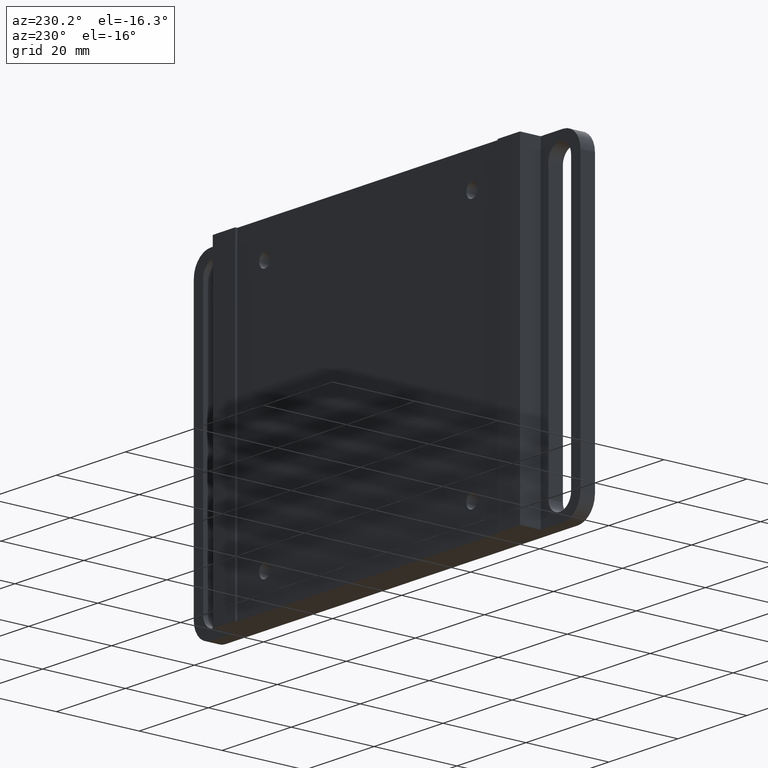
[diagram: clean part render]
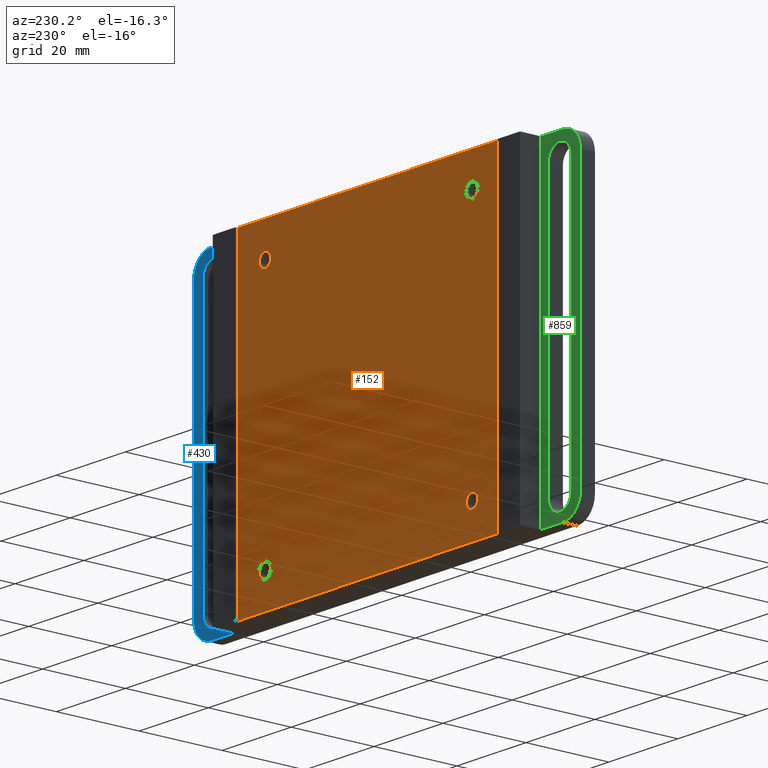
[diagram: same view with three faces highlighted in distinct colors, each labeled with its STEP entity id]
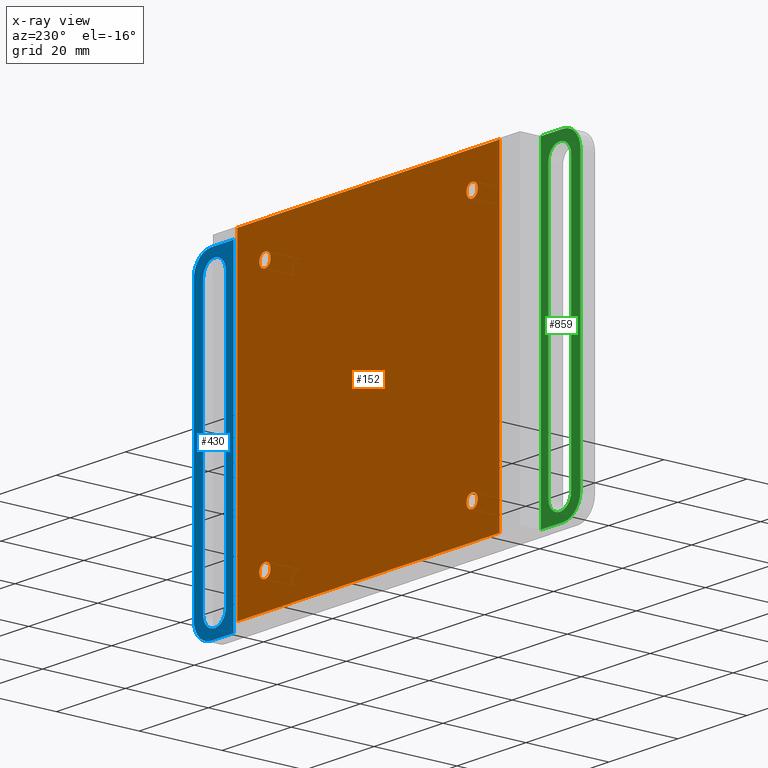
[diagram: x-ray of the same camera — body ghosted, the three highlighted faces saturated]
A machine part, auxiliary view with three faces highlighted in distinct colors.
The next image is the same camera in x-ray (body ghosted, the three faces saturated) — at least one of them is partly hidden behind the body in this view.
Their STEP definitions:

[orange] entity #152 — the highlighted planar face has unit normal (0, -1, 0).
#5 = VECTOR ( 'NONE', #423, 1000.000000000000000 ) ;
#10 = CARTESIAN_POINT ( 'NONE',  ( 29.99999999999981171, 8.000000000000001776, 30.00000000000000000 ) ) ;
#12 = CARTESIAN_POINT ( 'NONE',  ( -30.00000000000002842, 8.000000000000001776, 30.00000000000000000 ) ) ;
#13 = EDGE_CURVE ( 'NONE', #1026, #1016, #717, .T. ) ;
#16 = FACE_BOUND ( 'NONE', #61, .T. ) ;
#19 = CARTESIAN_POINT ( 'NONE',  ( 38.00000000000000711, 8.000000000000001776, 38.00000000000000000 ) ) ;
#61 = EDGE_LOOP ( 'NONE', ( #650 ) ) ;
#68 = EDGE_CURVE ( 'NONE', #1016, #781, #385, .T. ) ;
#94 = DIRECTION ( 'NONE',  ( 0.000000000000000000, -1.000000000000000000, 0.000000000000000000 ) ) ;
#99 = LINE ( 'NONE', #19, #5 ) ;
#102 = CARTESIAN_POINT ( 'NONE',  ( -30.00000000000002842, 8.000000000000001776, -28.35000000000000142 ) ) ;
#108 = CARTESIAN_POINT ( 'NONE',  ( 29.99999999999981171, 8.000000000000001776, 31.64999999999999858 ) ) ;
#150 = ORIENTED_EDGE ( 'NONE', *, *, #691, .F. ) ;
#152 = ADVANCED_FACE ( 'NONE', ( #424, #503, #16, #405, #579 ), #821, .F. ) ;
#178 = VERTEX_POINT ( 'NONE', #588 ) ;
#179 = VECTOR ( 'NONE', #955, 1000.000000000000000 ) ;
#232 = CIRCLE ( 'NONE', #678, 1.649999999999998579 ) ;
#233 = CIRCLE ( 'NONE', #304, 1.649999999999998579 ) ;
#277 = CARTESIAN_POINT ( 'NONE',  ( 29.99999999999981171, 8.000000000000001776, -28.35000000000000142 ) ) ;
#280 = VERTEX_POINT ( 'NONE', #108 ) ;
#281 = EDGE_LOOP ( 'NONE', ( #591, #1006, #150, #639 ) ) ;
#304 = AXIS2_PLACEMENT_3D ( 'NONE', #805, #867, #459 ) ;
#310 = DIRECTION ( 'NONE',  ( -1.000000000000000000, 0.000000000000000000, 0.000000000000000000 ) ) ;
#313 = CARTESIAN_POINT ( 'NONE',  ( 29.99999999999981171, 8.000000000000001776, -30.00000000000000000 ) ) ;
#337 = DIRECTION ( 'NONE',  ( 0.000000000000000000, -0.000000000000000000, -1.000000000000000000 ) ) ;
#361 = ORIENTED_EDGE ( 'NONE', *, *, #510, .F. ) ;
#373 = ORIENTED_EDGE ( 'NONE', *, *, #1053, .F. ) ;
#385 = LINE ( 'NONE', #702, #464 ) ;
#389 = EDGE_CURVE ( 'NONE', #672, #672, #232, .T. ) ;
#405 = FACE_BOUND ( 'NONE', #726, .T. ) ;
#423 = DIRECTION ( 'NONE',  ( -1.000000000000000000, 0.000000000000000000, 0.000000000000000000 ) ) ;
#424 = FACE_BOUND ( 'NONE', #848, .T. ) ;
#427 = VERTEX_POINT ( 'NONE', #801 ) ;
#459 = DIRECTION ( 'NONE',  ( 0.000000000000000000, 0.000000000000000000, 1.000000000000000000 ) ) ;
#464 = VECTOR ( 'NONE', #310, 1000.000000000000000 ) ;
#477 = CIRCLE ( 'NONE', #664, 1.649999999999998579 ) ;
#503 = FACE_BOUND ( 'NONE', #753, .T. ) ;
#510 = EDGE_CURVE ( 'NONE', #743, #743, #233, .T. ) ;
#579 = FACE_OUTER_BOUND ( 'NONE', #281, .T. ) ;
#580 = CARTESIAN_POINT ( 'NONE',  ( 38.00000000000000711, 8.000000000000001776, 38.00000000000000000 ) ) ;
#582 = LINE ( 'NONE', #585, #976 ) ;
#585 = CARTESIAN_POINT ( 'NONE',  ( -38.00000000000000711, 8.000000000000001776, 38.00000000000000000 ) ) ;
#588 = CARTESIAN_POINT ( 'NONE',  ( -30.00000000000002842, 8.000000000000001776, 31.64999999999999858 ) ) ;
#591 = ORIENTED_EDGE ( 'NONE', *, *, #68, .T. ) ;
#595 = CARTESIAN_POINT ( 'NONE',  ( 38.00000000000000711, 8.000000000000001776, -38.00000000000000000 ) ) ;
#597 = EDGE_CURVE ( 'NONE', #280, #280, #477, .T. ) ;
#629 = CARTESIAN_POINT ( 'NONE',  ( -38.00000000000000711, 8.000000000000001776, -38.00000000000000000 ) ) ;
#639 = ORIENTED_EDGE ( 'NONE', *, *, #13, .T. ) ;
#650 = ORIENTED_EDGE ( 'NONE', *, *, #597, .F. ) ;
#664 = AXIS2_PLACEMENT_3D ( 'NONE', #10, #813, #721 ) ;
#672 = VERTEX_POINT ( 'NONE', #277 ) ;
#678 = AXIS2_PLACEMENT_3D ( 'NONE', #313, #701, #880 ) ;
#679 = CIRCLE ( 'NONE', #827, 1.649999999999998579 ) ;
#680 = AXIS2_PLACEMENT_3D ( 'NONE', #900, #94, #337 ) ;
#691 = EDGE_CURVE ( 'NONE', #1026, #427, #99, .T. ) ;
#701 = DIRECTION ( 'NONE',  ( -0.000000000000000000, 1.000000000000000000, -0.000000000000000000 ) ) ;
#702 = CARTESIAN_POINT ( 'NONE',  ( 38.00000000000000711, 8.000000000000001776, -38.00000000000000000 ) ) ;
#704 = CARTESIAN_POINT ( 'NONE',  ( 38.00000000000000711, 8.000000000000001776, 38.00000000000000000 ) ) ;
#717 = LINE ( 'NONE', #704, #179 ) ;
#721 = DIRECTION ( 'NONE',  ( 0.000000000000000000, 0.000000000000000000, 1.000000000000000000 ) ) ;
#726 = EDGE_LOOP ( 'NONE', ( #373 ) ) ;
#743 = VERTEX_POINT ( 'NONE', #102 ) ;
#753 = EDGE_LOOP ( 'NONE', ( #754 ) ) ;
#754 = ORIENTED_EDGE ( 'NONE', *, *, #389, .F. ) ;
#758 = DIRECTION ( 'NONE',  ( -0.000000000000000000, 1.000000000000000000, -0.000000000000000000 ) ) ;
#762 = DIRECTION ( 'NONE',  ( 0.000000000000000000, 0.000000000000000000, 1.000000000000000000 ) ) ;
#781 = VERTEX_POINT ( 'NONE', #629 ) ;
#801 = CARTESIAN_POINT ( 'NONE',  ( -38.00000000000000711, 8.000000000000001776, 38.00000000000000000 ) ) ;
#805 = CARTESIAN_POINT ( 'NONE',  ( -30.00000000000002842, 8.000000000000001776, -30.00000000000000000 ) ) ;
#813 = DIRECTION ( 'NONE',  ( -0.000000000000000000, 1.000000000000000000, -0.000000000000000000 ) ) ;
#819 = EDGE_CURVE ( 'NONE', #427, #781, #582, .T. ) ;
#821 = PLANE ( 'NONE',  #680 ) ;
#827 = AXIS2_PLACEMENT_3D ( 'NONE', #12, #758, #762 ) ;
#848 = EDGE_LOOP ( 'NONE', ( #361 ) ) ;
#867 = DIRECTION ( 'NONE',  ( -0.000000000000000000, 1.000000000000000000, -0.000000000000000000 ) ) ;
#880 = DIRECTION ( 'NONE',  ( 0.000000000000000000, 0.000000000000000000, 1.000000000000000000 ) ) ;
#900 = CARTESIAN_POINT ( 'NONE',  ( 38.00000000000000711, 8.000000000000001776, 38.00000000000000000 ) ) ;
#955 = DIRECTION ( 'NONE',  ( -0.000000000000000000, -0.000000000000000000, -1.000000000000000000 ) ) ;
#976 = VECTOR ( 'NONE', #1056, 1000.000000000000000 ) ;
#1006 = ORIENTED_EDGE ( 'NONE', *, *, #819, .F. ) ;
#1016 = VERTEX_POINT ( 'NONE', #595 ) ;
#1026 = VERTEX_POINT ( 'NONE', #580 ) ;
#1053 = EDGE_CURVE ( 'NONE', #178, #178, #679, .T. ) ;
#1056 = DIRECTION ( 'NONE',  ( -0.000000000000000000, -0.000000000000000000, -1.000000000000000000 ) ) ;

[blue] entity #430 — the highlighted planar face has unit normal (-0, -1, 0).
#7 = LINE ( 'NONE', #837, #236 ) ;
#33 = VERTEX_POINT ( 'NONE', #314 ) ;
#53 = CIRCLE ( 'NONE', #625, 4.999999999999997335 ) ;
#57 = DIRECTION ( 'NONE',  ( 1.131341397376178325E-16, 1.000000000000000000, -0.000000000000000000 ) ) ;
#71 = VECTOR ( 'NONE', #901, 1000.000000000000000 ) ;
#79 = DIRECTION ( 'NONE',  ( 1.000000000000000000, -8.673617379884040402E-17, 0.000000000000000000 ) ) ;
#98 = EDGE_CURVE ( 'NONE', #221, #223, #977, .T. ) ;
#106 = EDGE_CURVE ( 'NONE', #783, #501, #454, .T. ) ;
#110 = VECTOR ( 'NONE', #563, 1000.000000000000000 ) ;
#116 = CARTESIAN_POINT ( 'NONE',  ( 46.70000000000003837, 3.500000000000012434, 32.50000000000000000 ) ) ;
#133 = EDGE_CURVE ( 'NONE', #33, #529, #576, .T. ) ;
#140 = DIRECTION ( 'NONE',  ( -1.131341397376178325E-16, -1.000000000000000000, 0.000000000000000000 ) ) ;
#149 = CARTESIAN_POINT ( 'NONE',  ( 46.70000000000003837, 3.500000000000012434, -32.50000000000000000 ) ) ;
#154 = DIRECTION ( 'NONE',  ( -0.000000000000000000, -0.000000000000000000, -1.000000000000000000 ) ) ;
#164 = DIRECTION ( 'NONE',  ( 1.131341397376178325E-16, 1.000000000000000000, -0.000000000000000000 ) ) ;
#187 = CARTESIAN_POINT ( 'NONE',  ( 53.30000000000003979, 3.500000000000013323, -32.50000000000000000 ) ) ;
#208 = EDGE_CURVE ( 'NONE', #774, #33, #7, .T. ) ;
#209 = CARTESIAN_POINT ( 'NONE',  ( 44.50000000000000000, 3.500000000000000000, -38.00000000000000000 ) ) ;
#218 = AXIS2_PLACEMENT_3D ( 'NONE', #749, #972, #825 ) ;
#221 = VERTEX_POINT ( 'NONE', #419 ) ;
#223 = VERTEX_POINT ( 'NONE', #761 ) ;
#224 = FACE_BOUND ( 'NONE', #844, .T. ) ;
#226 = ORIENTED_EDGE ( 'NONE', *, *, #698, .F. ) ;
#236 = VECTOR ( 'NONE', #983, 1000.000000000000000 ) ;
#237 = DIRECTION ( 'NONE',  ( 1.000000000000000000, -8.673617379884040402E-17, 0.000000000000000000 ) ) ;
#245 = LINE ( 'NONE', #471, #110 ) ;
#251 = DIRECTION ( 'NONE',  ( -1.000000000000000000, 1.131341397376178325E-16, 0.000000000000000000 ) ) ;
#261 = CARTESIAN_POINT ( 'NONE',  ( 44.50000000000000000, 3.500000000000000000, 38.00000000000000000 ) ) ;
#265 = DIRECTION ( 'NONE',  ( -1.000000000000000000, 1.131341397376178325E-16, 0.000000000000000000 ) ) ;
#274 = AXIS2_PLACEMENT_3D ( 'NONE', #794, #140, #461 ) ;
#305 = ORIENTED_EDGE ( 'NONE', *, *, #966, .T. ) ;
#314 = CARTESIAN_POINT ( 'NONE',  ( 56.00000000000000000, 3.499999999999998668, -33.00000000000000711 ) ) ;
#327 = VERTEX_POINT ( 'NONE', #209 ) ;
#351 = CARTESIAN_POINT ( 'NONE',  ( 51.00000000000000711, 3.499999999999999112, -33.00000000000000711 ) ) ;
#359 = VERTEX_POINT ( 'NONE', #116 ) ;
#387 = ORIENTED_EDGE ( 'NONE', *, *, #866, .F. ) ;
#399 = CARTESIAN_POINT ( 'NONE',  ( 50.00000000000004263, 3.500000000000012879, 32.50000000000000000 ) ) ;
#402 = CARTESIAN_POINT ( 'NONE',  ( 56.00000000000000000, 3.499999999999998668, 33.00000000000000000 ) ) ;
#419 = CARTESIAN_POINT ( 'NONE',  ( 51.00000000000000711, 3.499999999999999112, 38.00000000000000000 ) ) ;
#430 = ADVANCED_FACE ( 'NONE', ( #224, #870 ), #1047, .F. ) ;
#435 = EDGE_LOOP ( 'NONE', ( #534, #436, #305, #874, #770, #1022 ) ) ;
#436 = ORIENTED_EDGE ( 'NONE', *, *, #133, .T. ) ;
#447 = AXIS2_PLACEMENT_3D ( 'NONE', #399, #1052, #492 ) ;
#454 = CIRCLE ( 'NONE', #218, 3.299999999999997158 ) ;
#461 = DIRECTION ( 'NONE',  ( 1.000000000000000000, -1.131341397376178325E-16, 0.000000000000000000 ) ) ;
#468 = CARTESIAN_POINT ( 'NONE',  ( 56.00000000000000000, 3.499999999999998668, -38.00000000000000000 ) ) ;
#471 = CARTESIAN_POINT ( 'NONE',  ( 46.70000000000003837, 3.500000000000012434, -32.50000000000000000 ) ) ;
#492 = DIRECTION ( 'NONE',  ( -1.000000000000000000, -1.314184451497582245E-16, 0.000000000000000000 ) ) ;
#493 = EDGE_CURVE ( 'NONE', #221, #774, #53, .T. ) ;
#501 = VERTEX_POINT ( 'NONE', #149 ) ;
#505 = CARTESIAN_POINT ( 'NONE',  ( 53.30000000000003268, 3.499999999999999112, 32.50000000000000000 ) ) ;
#529 = VERTEX_POINT ( 'NONE', #651 ) ;
#533 = ORIENTED_EDGE ( 'NONE', *, *, #106, .F. ) ;
#534 = ORIENTED_EDGE ( 'NONE', *, *, #208, .T. ) ;
#557 = CARTESIAN_POINT ( 'NONE',  ( 56.00000000000000000, 3.499999999999998668, 38.00000000000000000 ) ) ;
#563 = DIRECTION ( 'NONE',  ( 0.000000000000000000, 0.000000000000000000, 1.000000000000000000 ) ) ;
#576 = CIRCLE ( 'NONE', #861, 4.999999999999997335 ) ;
#593 = VECTOR ( 'NONE', #251, 1000.000000000000000 ) ;
#616 = CARTESIAN_POINT ( 'NONE',  ( 51.00000000000000711, 3.499999999999999112, 33.00000000000000000 ) ) ;
#625 = AXIS2_PLACEMENT_3D ( 'NONE', #616, #57, #237 ) ;
#633 = LINE ( 'NONE', #261, #71 ) ;
#646 = VECTOR ( 'NONE', #154, 1000.000000000000000 ) ;
#648 = EDGE_CURVE ( 'NONE', #359, #692, #909, .T. ) ;
#651 = CARTESIAN_POINT ( 'NONE',  ( 51.00000000000000711, 3.499999999999999112, -38.00000000000000000 ) ) ;
#692 = VERTEX_POINT ( 'NONE', #505 ) ;
#698 = EDGE_CURVE ( 'NONE', #692, #783, #744, .T. ) ;
#713 = VECTOR ( 'NONE', #265, 1000.000000000000000 ) ;
#729 = LINE ( 'NONE', #468, #593 ) ;
#738 = ORIENTED_EDGE ( 'NONE', *, *, #648, .F. ) ;
#744 = LINE ( 'NONE', #839, #646 ) ;
#749 = CARTESIAN_POINT ( 'NONE',  ( 50.00000000000004263, 3.500000000000012879, -32.50000000000000000 ) ) ;
#761 = CARTESIAN_POINT ( 'NONE',  ( 44.50000000000000000, 3.500000000000000000, 38.00000000000000000 ) ) ;
#770 = ORIENTED_EDGE ( 'NONE', *, *, #98, .F. ) ;
#774 = VERTEX_POINT ( 'NONE', #402 ) ;
#783 = VERTEX_POINT ( 'NONE', #187 ) ;
#794 = CARTESIAN_POINT ( 'NONE',  ( 56.00000000000000000, 3.499999999999998668, 38.00000000000000000 ) ) ;
#825 = DIRECTION ( 'NONE',  ( 1.000000000000000000, 1.314184451497582245E-16, 0.000000000000000000 ) ) ;
#837 = CARTESIAN_POINT ( 'NONE',  ( 56.00000000000000000, 3.499999999999998668, 38.00000000000000000 ) ) ;
#839 = CARTESIAN_POINT ( 'NONE',  ( 53.30000000000003268, 3.500000000000013323, -32.50000000000000000 ) ) ;
#844 = EDGE_LOOP ( 'NONE', ( #226, #738, #387, #533 ) ) ;
#861 = AXIS2_PLACEMENT_3D ( 'NONE', #351, #164, #79 ) ;
#866 = EDGE_CURVE ( 'NONE', #501, #359, #245, .T. ) ;
#870 = FACE_OUTER_BOUND ( 'NONE', #435, .T. ) ;
#874 = ORIENTED_EDGE ( 'NONE', *, *, #906, .F. ) ;
#901 = DIRECTION ( 'NONE',  ( -0.000000000000000000, -0.000000000000000000, -1.000000000000000000 ) ) ;
#906 = EDGE_CURVE ( 'NONE', #223, #327, #633, .T. ) ;
#909 = CIRCLE ( 'NONE', #447, 3.299999999999997158 ) ;
#966 = EDGE_CURVE ( 'NONE', #529, #327, #729, .T. ) ;
#972 = DIRECTION ( 'NONE',  ( -1.577021341797097067E-16, 1.000000000000000000, -0.000000000000000000 ) ) ;
#977 = LINE ( 'NONE', #557, #713 ) ;
#983 = DIRECTION ( 'NONE',  ( -0.000000000000000000, -0.000000000000000000, -1.000000000000000000 ) ) ;
#1022 = ORIENTED_EDGE ( 'NONE', *, *, #493, .T. ) ;
#1047 = PLANE ( 'NONE',  #274 ) ;
#1052 = DIRECTION ( 'NONE',  ( -1.577021341797097067E-16, 1.000000000000000000, 0.000000000000000000 ) ) ;

[green] entity #859 — the highlighted planar face has unit normal (0, -1, 0).
#3 = ORIENTED_EDGE ( 'NONE', *, *, #326, .F. ) ;
#8 = CARTESIAN_POINT ( 'NONE',  ( -51.00000000000000711, 3.499999999999999112, -33.00000000000000711 ) ) ;
#20 = EDGE_CURVE ( 'NONE', #997, #969, #66, .T. ) ;
#30 = ORIENTED_EDGE ( 'NONE', *, *, #466, .F. ) ;
#35 = EDGE_LOOP ( 'NONE', ( #211, #546, #1008, #745, #137, #828 ) ) ;
#52 = CARTESIAN_POINT ( 'NONE',  ( -44.50000000000000000, 3.500000000000000000, 38.00000000000000000 ) ) ;
#56 = AXIS2_PLACEMENT_3D ( 'NONE', #360, #296, #603 ) ;
#58 = EDGE_CURVE ( 'NONE', #458, #452, #786, .T. ) ;
#60 = DIRECTION ( 'NONE',  ( -0.000000000000000000, -0.000000000000000000, -1.000000000000000000 ) ) ;
#62 = CARTESIAN_POINT ( 'NONE',  ( -53.30000000000003268, 3.499999999999999112, -32.50000000000000711 ) ) ;
#66 = LINE ( 'NONE', #460, #382 ) ;
#120 = ORIENTED_EDGE ( 'NONE', *, *, #889, .F. ) ;
#124 = EDGE_LOOP ( 'NONE', ( #522, #120, #30, #3 ) ) ;
#137 = ORIENTED_EDGE ( 'NONE', *, *, #877, .T. ) ;
#142 = DIRECTION ( 'NONE',  ( -0.000000000000000000, -0.000000000000000000, -1.000000000000000000 ) ) ;
#151 = FACE_OUTER_BOUND ( 'NONE', #35, .T. ) ;
#155 = DIRECTION ( 'NONE',  ( -0.000000000000000000, -0.000000000000000000, -1.000000000000000000 ) ) ;
#176 = VECTOR ( 'NONE', #155, 1000.000000000000000 ) ;
#211 = ORIENTED_EDGE ( 'NONE', *, *, #480, .F. ) ;
#215 = VERTEX_POINT ( 'NONE', #499 ) ;
#228 = DIRECTION ( 'NONE',  ( 0.000000000000000000, 0.000000000000000000, 1.000000000000000000 ) ) ;
#230 = CARTESIAN_POINT ( 'NONE',  ( -51.00000000000000711, 3.499999999999999112, 38.00000000000000000 ) ) ;
#235 = VECTOR ( 'NONE', #978, 1000.000000000000000 ) ;
#241 = DIRECTION ( 'NONE',  ( 1.000000000000000000, 1.131341397376178325E-16, 0.000000000000000000 ) ) ;
#242 = CARTESIAN_POINT ( 'NONE',  ( -46.70000000000003837, 3.499999999999997780, -32.50000000000000000 ) ) ;
#254 = CARTESIAN_POINT ( 'NONE',  ( -51.00000000000000711, 3.499999999999999112, -38.00000000000000000 ) ) ;
#269 = AXIS2_PLACEMENT_3D ( 'NONE', #307, #950, #403 ) ;
#286 = VERTEX_POINT ( 'NONE', #456 ) ;
#296 = DIRECTION ( 'NONE',  ( -1.577021341797097067E-16, 1.000000000000000000, -0.000000000000000000 ) ) ;
#307 = CARTESIAN_POINT ( 'NONE',  ( -51.00000000000000711, 3.499999999999999112, 33.00000000000000000 ) ) ;
#326 = EDGE_CURVE ( 'NONE', #969, #286, #697, .T. ) ;
#332 = LINE ( 'NONE', #645, #235 ) ;
#357 = VERTEX_POINT ( 'NONE', #583 ) ;
#360 = CARTESIAN_POINT ( 'NONE',  ( -50.00000000000004263, 3.499999999999997335, 32.50000000000000000 ) ) ;
#382 = VECTOR ( 'NONE', #228, 1000.000000000000000 ) ;
#392 = LINE ( 'NONE', #689, #530 ) ;
#395 = AXIS2_PLACEMENT_3D ( 'NONE', #962, #815, #241 ) ;
#403 = DIRECTION ( 'NONE',  ( 1.000000000000000000, 8.673617379884040402E-17, 0.000000000000000000 ) ) ;
#406 = DIRECTION ( 'NONE',  ( -1.577021341797097067E-16, 1.000000000000000000, 0.000000000000000000 ) ) ;
#452 = VERTEX_POINT ( 'NONE', #630 ) ;
#456 = CARTESIAN_POINT ( 'NONE',  ( -46.70000000000004547, 3.499999999999997780, 32.50000000000000000 ) ) ;
#458 = VERTEX_POINT ( 'NONE', #954 ) ;
#460 = CARTESIAN_POINT ( 'NONE',  ( -53.30000000000003268, 3.499999999999996891, -32.50000000000000000 ) ) ;
#463 = CIRCLE ( 'NONE', #996, 3.299999999999997158 ) ;
#466 = EDGE_CURVE ( 'NONE', #286, #787, #392, .T. ) ;
#467 = VERTEX_POINT ( 'NONE', #230 ) ;
#476 = DIRECTION ( 'NONE',  ( -1.000000000000000000, -1.131341397376178325E-16, 0.000000000000000000 ) ) ;
#480 = EDGE_CURVE ( 'NONE', #215, #357, #1030, .T. ) ;
#484 = DIRECTION ( 'NONE',  ( -1.000000000000000000, -1.314184451497582245E-16, 0.000000000000000000 ) ) ;
#499 = CARTESIAN_POINT ( 'NONE',  ( -56.00000000000000000, 3.499999999999998668, 33.00000000000000000 ) ) ;
#511 = CIRCLE ( 'NONE', #732, 4.999999999999997335 ) ;
#521 = EDGE_CURVE ( 'NONE', #215, #467, #927, .T. ) ;
#522 = ORIENTED_EDGE ( 'NONE', *, *, #20, .F. ) ;
#523 = VERTEX_POINT ( 'NONE', #254 ) ;
#530 = VECTOR ( 'NONE', #60, 1000.000000000000000 ) ;
#546 = ORIENTED_EDGE ( 'NONE', *, *, #521, .T. ) ;
#553 = DIRECTION ( 'NONE',  ( -1.131341397376178325E-16, 1.000000000000000000, -0.000000000000000000 ) ) ;
#583 = CARTESIAN_POINT ( 'NONE',  ( -56.00000000000000000, 3.499999999999998668, -33.00000000000000711 ) ) ;
#603 = DIRECTION ( 'NONE',  ( 1.000000000000000000, 1.314184451497582245E-16, 0.000000000000000000 ) ) ;
#630 = CARTESIAN_POINT ( 'NONE',  ( -44.50000000000000000, 3.500000000000000000, -38.00000000000000000 ) ) ;
#638 = CARTESIAN_POINT ( 'NONE',  ( -53.30000000000003268, 3.499999999999996891, 32.50000000000000000 ) ) ;
#645 = CARTESIAN_POINT ( 'NONE',  ( -44.50000000000000000, 3.500000000000000000, 38.00000000000000000 ) ) ;
#689 = CARTESIAN_POINT ( 'NONE',  ( -46.70000000000003837, 3.499999999999997780, -32.50000000000000000 ) ) ;
#697 = CIRCLE ( 'NONE', #56, 3.299999999999997158 ) ;
#710 = VECTOR ( 'NONE', #476, 1000.000000000000000 ) ;
#732 = AXIS2_PLACEMENT_3D ( 'NONE', #8, #553, #822 ) ;
#745 = ORIENTED_EDGE ( 'NONE', *, *, #58, .T. ) ;
#786 = LINE ( 'NONE', #52, #846 ) ;
#787 = VERTEX_POINT ( 'NONE', #242 ) ;
#796 = CARTESIAN_POINT ( 'NONE',  ( -44.50000000000000000, 3.500000000000000000, -38.00000000000000000 ) ) ;
#809 = PLANE ( 'NONE',  #395 ) ;
#815 = DIRECTION ( 'NONE',  ( 1.131341397376178325E-16, -1.000000000000000000, 0.000000000000000000 ) ) ;
#822 = DIRECTION ( 'NONE',  ( 1.000000000000000000, 8.673617379884040402E-17, 0.000000000000000000 ) ) ;
#828 = ORIENTED_EDGE ( 'NONE', *, *, #953, .T. ) ;
#846 = VECTOR ( 'NONE', #142, 1000.000000000000000 ) ;
#859 = ADVANCED_FACE ( 'NONE', ( #973, #151 ), #809, .F. ) ;
#877 = EDGE_CURVE ( 'NONE', #452, #523, #1055, .T. ) ;
#889 = EDGE_CURVE ( 'NONE', #787, #997, #463, .T. ) ;
#927 = CIRCLE ( 'NONE', #269, 4.999999999999997335 ) ;
#929 = EDGE_CURVE ( 'NONE', #458, #467, #332, .T. ) ;
#950 = DIRECTION ( 'NONE',  ( -1.131341397376178325E-16, 1.000000000000000000, -0.000000000000000000 ) ) ;
#953 = EDGE_CURVE ( 'NONE', #523, #357, #511, .T. ) ;
#954 = CARTESIAN_POINT ( 'NONE',  ( -44.50000000000000000, 3.500000000000000000, 38.00000000000000000 ) ) ;
#962 = CARTESIAN_POINT ( 'NONE',  ( -44.50000000000000000, 3.500000000000000000, 38.00000000000000000 ) ) ;
#969 = VERTEX_POINT ( 'NONE', #638 ) ;
#973 = FACE_BOUND ( 'NONE', #124, .T. ) ;
#978 = DIRECTION ( 'NONE',  ( -1.000000000000000000, -1.131341397376178325E-16, 0.000000000000000000 ) ) ;
#984 = CARTESIAN_POINT ( 'NONE',  ( -50.00000000000004263, 3.499999999999997335, -32.50000000000000000 ) ) ;
#996 = AXIS2_PLACEMENT_3D ( 'NONE', #984, #406, #484 ) ;
#997 = VERTEX_POINT ( 'NONE', #62 ) ;
#1008 = ORIENTED_EDGE ( 'NONE', *, *, #929, .F. ) ;
#1030 = LINE ( 'NONE', #1040, #176 ) ;
#1040 = CARTESIAN_POINT ( 'NONE',  ( -56.00000000000000000, 3.499999999999998668, 38.00000000000000000 ) ) ;
#1055 = LINE ( 'NONE', #796, #710 ) ;